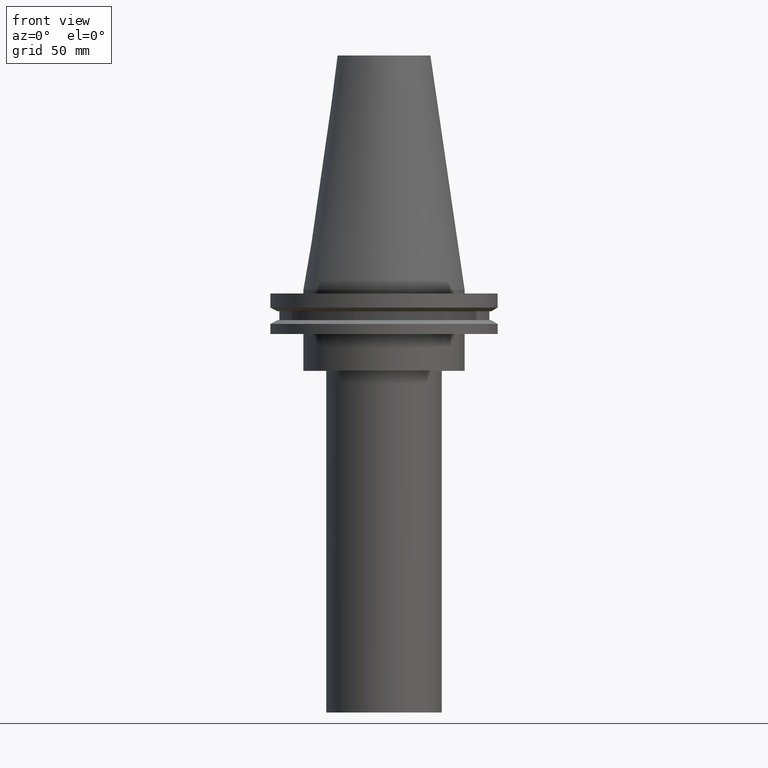
[diagram: clean part render]
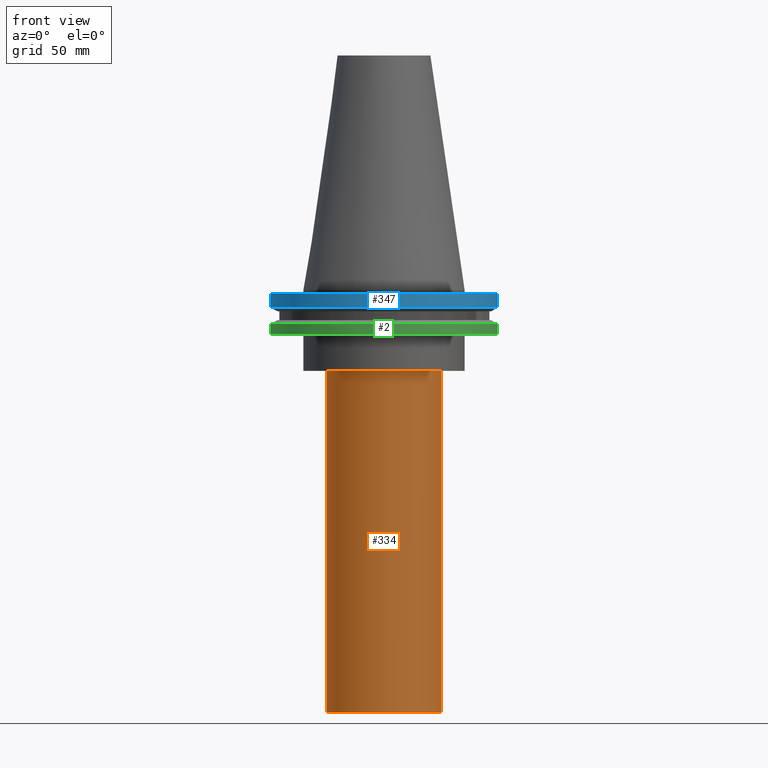
[diagram: same view with three faces highlighted in distinct colors, each labeled with its STEP entity id]
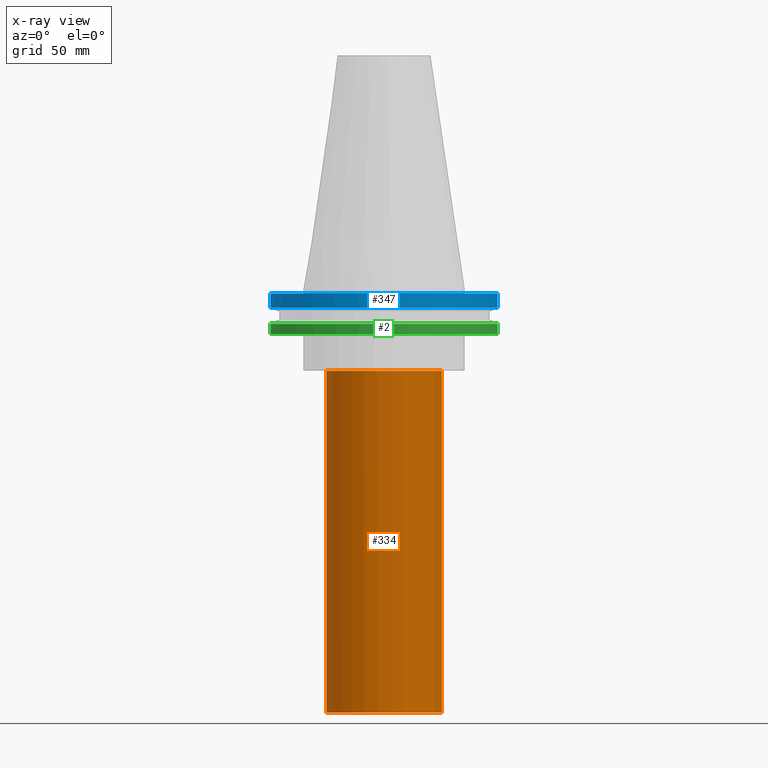
[diagram: x-ray of the same camera — body ghosted, the three highlighted faces saturated]
A machine part, front view with three faces highlighted in distinct colors.
The next image is the same camera in x-ray (body ghosted, the three faces saturated) — at least one of them is partly hidden behind the body in this view.
Their STEP definitions:

[orange] entity #334 — the highlighted cylindrical surface (bore or boss wall) has radius 25 mm, axis along (-0, -0, 1).
#30 = CIRCLE ( 'NONE', #345, 25.00000000000000000 ) ;
#36 = EDGE_LOOP ( 'NONE', ( #95 ) ) ;
#50 = CARTESIAN_POINT ( 'NONE',  ( 0.000000000000000000, 0.000000000000000000, -183.0000000000000000 ) ) ;
#52 = DIRECTION ( 'NONE',  ( -0.000000000000000000, -0.000000000000000000, 1.000000000000000000 ) ) ;
#87 = EDGE_CURVE ( 'NONE', #343, #343, #382, .T. ) ;
#95 = ORIENTED_EDGE ( 'NONE', *, *, #141, .F. ) ;
#109 = DIRECTION ( 'NONE',  ( 1.000000000000000000, 0.000000000000000000, 0.000000000000000000 ) ) ;
#110 = DIRECTION ( 'NONE',  ( -0.000000000000000000, -0.000000000000000000, 1.000000000000000000 ) ) ;
#117 = FACE_OUTER_BOUND ( 'NONE', #36, .T. ) ;
#120 = EDGE_LOOP ( 'NONE', ( #204 ) ) ;
#132 = DIRECTION ( 'NONE',  ( -0.000000000000000000, -0.000000000000000000, 1.000000000000000000 ) ) ;
#141 = EDGE_CURVE ( 'NONE', #254, #254, #30, .T. ) ;
#181 = CARTESIAN_POINT ( 'NONE',  ( 25.00000000000000000, 0.000000000000000000, -35.00000000000000000 ) ) ;
#204 = ORIENTED_EDGE ( 'NONE', *, *, #87, .T. ) ;
#208 = DIRECTION ( 'NONE',  ( 1.000000000000000000, 0.000000000000000000, 0.000000000000000000 ) ) ;
#225 = DIRECTION ( 'NONE',  ( 1.000000000000000000, 0.000000000000000000, 0.000000000000000000 ) ) ;
#235 = CARTESIAN_POINT ( 'NONE',  ( 0.000000000000000000, 0.000000000000000000, 0.000000000000000000 ) ) ;
#254 = VERTEX_POINT ( 'NONE', #181 ) ;
#259 = AXIS2_PLACEMENT_3D ( 'NONE', #50, #132, #109 ) ;
#270 = CYLINDRICAL_SURFACE ( 'NONE', #373, 25.00000000000000000 ) ;
#317 = CARTESIAN_POINT ( 'NONE',  ( 0.000000000000000000, 0.000000000000000000, -35.00000000000000000 ) ) ;
#332 = FACE_OUTER_BOUND ( 'NONE', #120, .T. ) ;
#334 = ADVANCED_FACE ( 'NONE', ( #117, #332 ), #270, .T. ) ;
#343 = VERTEX_POINT ( 'NONE', #378 ) ;
#345 = AXIS2_PLACEMENT_3D ( 'NONE', #317, #110, #225 ) ;
#373 = AXIS2_PLACEMENT_3D ( 'NONE', #235, #52, #208 ) ;
#378 = CARTESIAN_POINT ( 'NONE',  ( 25.00000000000000000, 0.000000000000000000, -183.0000000000000000 ) ) ;
#382 = CIRCLE ( 'NONE', #259, 25.00000000000000000 ) ;

[blue] entity #347 — the highlighted cylindrical surface (bore or boss wall) has radius 49.215 mm, axis along (-0, -0, 1).
#1 = CARTESIAN_POINT ( 'NONE',  ( 49.21499999999999631, 0.000000000000000000, -1.499999999999987566 ) ) ;
#33 = VERTEX_POINT ( 'NONE', #152 ) ;
#44 = DIRECTION ( 'NONE',  ( -0.000000000000000000, -0.000000000000000000, 1.000000000000000000 ) ) ;
#46 = DIRECTION ( 'NONE',  ( 1.000000000000000000, 0.000000000000000000, 0.000000000000000000 ) ) ;
#54 = DIRECTION ( 'NONE',  ( 1.000000000000000000, 0.000000000000000000, 0.000000000000000000 ) ) ;
#76 = EDGE_CURVE ( 'NONE', #272, #272, #283, .T. ) ;
#83 = DIRECTION ( 'NONE',  ( 1.000000000000000000, 0.000000000000000000, 0.000000000000000000 ) ) ;
#114 = AXIS2_PLACEMENT_3D ( 'NONE', #384, #44, #46 ) ;
#121 = DIRECTION ( 'NONE',  ( -0.000000000000000000, -0.000000000000000000, 1.000000000000000000 ) ) ;
#130 = AXIS2_PLACEMENT_3D ( 'NONE', #356, #135, #83 ) ;
#134 = AXIS2_PLACEMENT_3D ( 'NONE', #329, #121, #54 ) ;
#135 = DIRECTION ( 'NONE',  ( -0.000000000000000000, -0.000000000000000000, 1.000000000000000000 ) ) ;
#144 = CYLINDRICAL_SURFACE ( 'NONE', #134, 49.21499999999999631 ) ;
#149 = EDGE_LOOP ( 'NONE', ( #301 ) ) ;
#152 = CARTESIAN_POINT ( 'NONE',  ( 49.21500000000000341, 0.000000000000000000, -7.602389855251287187 ) ) ;
#180 = CIRCLE ( 'NONE', #130, 49.21500000000000341 ) ;
#237 = FACE_OUTER_BOUND ( 'NONE', #149, .T. ) ;
#238 = EDGE_CURVE ( 'NONE', #33, #33, #180, .T. ) ;
#272 = VERTEX_POINT ( 'NONE', #1 ) ;
#280 = ORIENTED_EDGE ( 'NONE', *, *, #76, .F. ) ;
#283 = CIRCLE ( 'NONE', #114, 49.21499999999999631 ) ;
#301 = ORIENTED_EDGE ( 'NONE', *, *, #238, .T. ) ;
#306 = EDGE_LOOP ( 'NONE', ( #280 ) ) ;
#327 = FACE_OUTER_BOUND ( 'NONE', #306, .T. ) ;
#329 = CARTESIAN_POINT ( 'NONE',  ( 0.000000000000000000, 0.000000000000000000, 101.5999999999999943 ) ) ;
#347 = ADVANCED_FACE ( 'NONE', ( #327, #237 ), #144, .T. ) ;
#356 = CARTESIAN_POINT ( 'NONE',  ( 0.000000000000000000, 0.000000000000000000, -7.602389855251287187 ) ) ;
#384 = CARTESIAN_POINT ( 'NONE',  ( 0.000000000000000000, 0.000000000000000000, -1.499999999999987566 ) ) ;

[green] entity #2 — the highlighted cylindrical surface (bore or boss wall) has radius 49.215 mm, axis along (-0, -0, 1).
#2 = ADVANCED_FACE ( 'NONE', ( #131, #9 ), #220, .T. ) ;
#3 = ORIENTED_EDGE ( 'NONE', *, *, #154, .T. ) ;
#9 = FACE_OUTER_BOUND ( 'NONE', #312, .T. ) ;
#29 = VERTEX_POINT ( 'NONE', #391 ) ;
#31 = AXIS2_PLACEMENT_3D ( 'NONE', #111, #351, #252 ) ;
#43 = CARTESIAN_POINT ( 'NONE',  ( 49.21499999999998920, 0.000000000000000000, -19.04999999999999716 ) ) ;
#61 = EDGE_CURVE ( 'NONE', #29, #29, #331, .T. ) ;
#111 = CARTESIAN_POINT ( 'NONE',  ( 0.000000000000000000, 0.000000000000000000, -19.04999999999999716 ) ) ;
#131 = FACE_OUTER_BOUND ( 'NONE', #191, .T. ) ;
#136 = VERTEX_POINT ( 'NONE', #43 ) ;
#154 = EDGE_CURVE ( 'NONE', #136, #136, #199, .T. ) ;
#156 = AXIS2_PLACEMENT_3D ( 'NONE', #381, #319, #192 ) ;
#176 = ORIENTED_EDGE ( 'NONE', *, *, #61, .F. ) ;
#182 = AXIS2_PLACEMENT_3D ( 'NONE', #346, #190, #315 ) ;
#190 = DIRECTION ( 'NONE',  ( -0.000000000000000000, -0.000000000000000000, 1.000000000000000000 ) ) ;
#191 = EDGE_LOOP ( 'NONE', ( #176 ) ) ;
#192 = DIRECTION ( 'NONE',  ( 1.000000000000000000, 0.000000000000000000, 0.000000000000000000 ) ) ;
#199 = CIRCLE ( 'NONE', #31, 49.21499999999998920 ) ;
#220 = CYLINDRICAL_SURFACE ( 'NONE', #182, 49.21499999999998920 ) ;
#252 = DIRECTION ( 'NONE',  ( 1.000000000000000000, 0.000000000000000000, 0.000000000000000000 ) ) ;
#312 = EDGE_LOOP ( 'NONE', ( #3 ) ) ;
#315 = DIRECTION ( 'NONE',  ( 1.000000000000000000, 0.000000000000000000, 0.000000000000000000 ) ) ;
#319 = DIRECTION ( 'NONE',  ( -0.000000000000000000, -0.000000000000000000, 1.000000000000000000 ) ) ;
#331 = CIRCLE ( 'NONE', #156, 49.21499999999998920 ) ;
#346 = CARTESIAN_POINT ( 'NONE',  ( 0.000000000000000000, 0.000000000000000000, 101.5999999999999943 ) ) ;
#351 = DIRECTION ( 'NONE',  ( -0.000000000000000000, -0.000000000000000000, 1.000000000000000000 ) ) ;
#381 = CARTESIAN_POINT ( 'NONE',  ( 0.000000000000000000, 0.000000000000000000, -14.65761014474876944 ) ) ;
#391 = CARTESIAN_POINT ( 'NONE',  ( 49.21499999999998920, 0.000000000000000000, -14.65761014474876944 ) ) ;